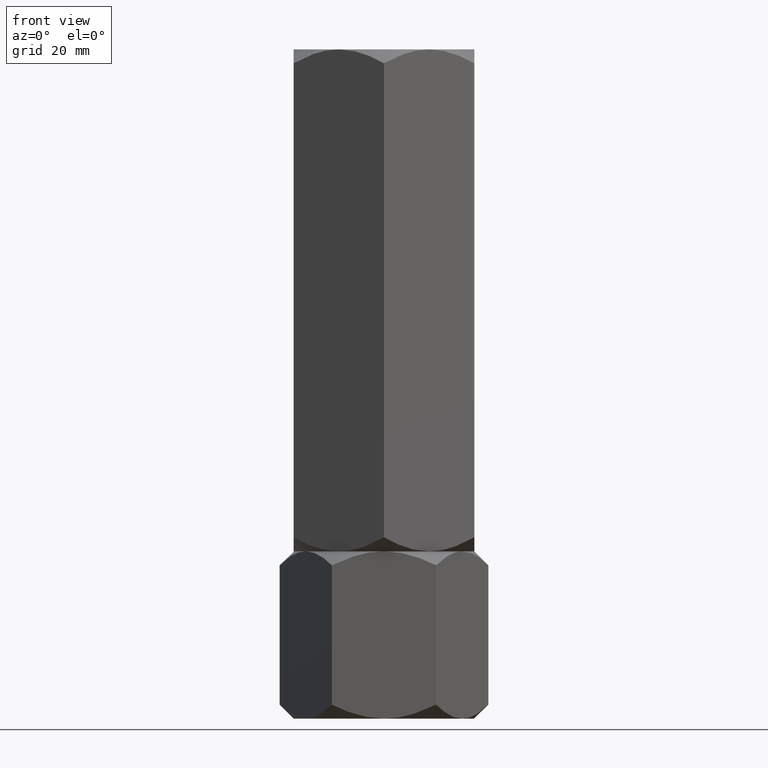
[diagram: clean part render]
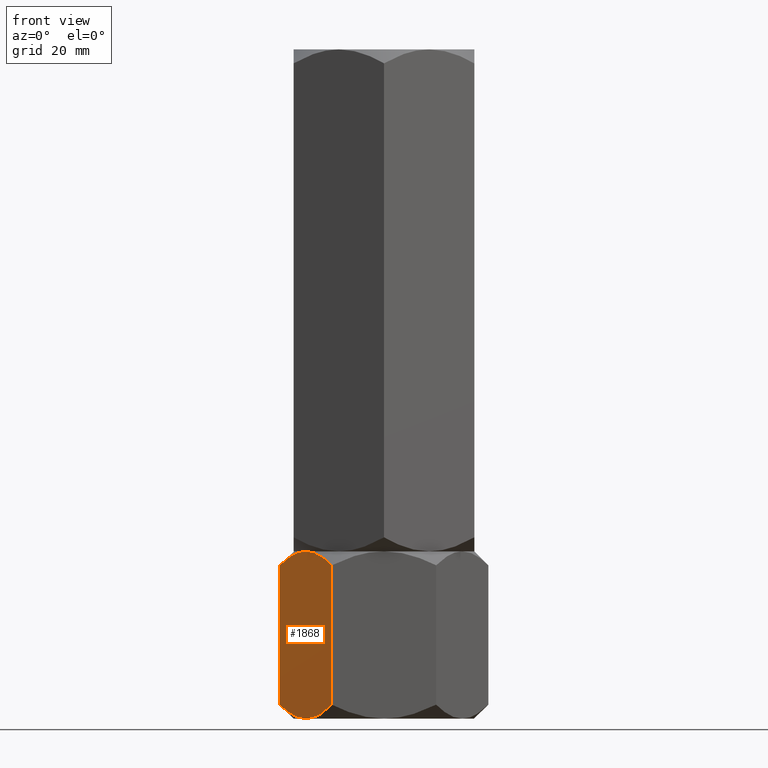
[diagram: same view with one face highlighted and labeled with its STEP entity id]
A machine part, front view. The second image highlights one B-rep face of the part: STEP entity #1868.
In plain terms, the highlighted planar face has unit normal (0.866, 0.5, -0).
Its self-contained STEP definition (entity closure, byte-faithful):
#12 = EDGE_CURVE ( 'NONE', #223, #1515, #426, .T. ) ;
#22 = CARTESIAN_POINT ( 'NONE',  ( -15.36090870263097408, -9.394125676616235765, 3.509257500474566305E-15 ) ) ;
#29 = EDGE_CURVE ( 'NONE', #794, #223, #205, .T. ) ;
#41 = CARTESIAN_POINT ( 'NONE',  ( -13.33524813246346952, -12.90267270303528235, 0.5370855558290108522 ) ) ;
#96 = CARTESIAN_POINT ( 'NONE',  ( -19.97072132548310108, -1.409696000463990906, 1.970721325483052233 ) ) ;
#116 = EDGE_CURVE ( 'NONE', #1865, #1197, #874, .T. ) ;
#143 = B_SPLINE_CURVE_WITH_KNOTS ( 'NONE', 3,
 ( #554, #1509, #1356, #1187, #397, #872, #1030, #681, #1633, #521 ),
 .UNSPECIFIED., .F., .F.,
 ( 4, 2, 2, 2, 4 ),
 ( 2.544307986817553974E-07, 0.005386537354063076002, 0.008079678815695275074, 0.009426249546511372007, 0.01077282027732746894 ),
 .UNSPECIFIED. ) ;
#147 = ORIENTED_EDGE ( 'NONE', *, *, #29, .F. ) ;
#177 = ORIENTED_EDGE ( 'NONE', *, *, #12, .F. ) ;
#181 = CARTESIAN_POINT ( 'NONE',  ( -12.04041001437222214, -15.14539811114618750, 1.277383077889871377 ) ) ;
#193 = CARTESIAN_POINT ( 'NONE',  ( -13.79618737047370125, -12.10430252359947900, 33.05693742621171083 ) ) ;
#205 = B_SPLINE_CURVE_WITH_KNOTS ( 'NONE', 3,
 ( #1457, #510, #193, #978, #1771, #361 ),
 .UNSPECIFIED., .F., .F.,
 ( 4, 2, 4 ),
 ( 0.01077282027732746894, 0.01612137750481873466, 0.02146993473231000038 ),
 .UNSPECIFIED. ) ;
#223 = VERTEX_POINT ( 'NONE', #951 ) ;
#259 = DIRECTION ( 'NONE',  ( 0.8660254037844385966, 0.5000000000000001110, -0.000000000000000000 ) ) ;
#268 = DIRECTION ( 'NONE',  ( -0.5000000000000001110, 0.8660254037844385966, 0.000000000000000000 ) ) ;
#273 = CARTESIAN_POINT ( 'NONE',  ( -10.39230484541326227, -18.00000000000000355, 33.33333333333330017 ) ) ;
#279 = CARTESIAN_POINT ( 'NONE',  ( -20.78460969082652809, -3.512511347539742526E-15, 33.33333333333330017 ) ) ;
#329 = EDGE_CURVE ( 'NONE', #1515, #1865, #923, .T. ) ;
#361 = CARTESIAN_POINT ( 'NONE',  ( -10.39230484541326405, -18.00000000000000355, 30.54872364250677563 ) ) ;
#367 = CARTESIAN_POINT ( 'NONE',  ( -14.67378923359658316, -10.58425150785354774, 0.08694689011815660840 ) ) ;
#397 = CARTESIAN_POINT ( 'NONE',  ( -17.40248616759157230, -5.858009779716803145, 32.99277023107802620 ) ) ;
#426 = LINE ( 'NONE', #273, #997 ) ;
#490 = CARTESIAN_POINT ( 'NONE',  ( -15.13208409062669624, -9.790461530629878339, 0.01733285647409177344 ) ) ;
#507 = CARTESIAN_POINT ( 'NONE',  ( -11.20713682960488100, -16.58866960374795951, 1.969777706634903591 ) ) ;
#510 = CARTESIAN_POINT ( 'NONE',  ( -14.68463803553234825, -10.56546083169953754, 33.33333333333330017 ) ) ;
#521 = CARTESIAN_POINT ( 'NONE',  ( -15.58845726811989607, -9.000000000000003553, 33.33333333333330017 ) ) ;
#553 = ORIENTED_EDGE ( 'NONE', *, *, #329, .F. ) ;
#554 = CARTESIAN_POINT ( 'NONE',  ( -20.78460969082652809, -3.746502714695151746E-15, 30.54872364250677919 ) ) ;
#593 = CARTESIAN_POINT ( 'NONE',  ( -20.78460969082652809, -3.746502714695151746E-15, 2.784609690826518325 ) ) ;
#610 = PLANE ( 'NONE',  #1898 ) ;
#627 = DIRECTION ( 'NONE',  ( -0.000000000000000000, -0.000000000000000000, -1.000000000000000000 ) ) ;
#681 = CARTESIAN_POINT ( 'NONE',  ( -16.04483044561309768, -8.209538469370130542, 33.31600047685921595 ) ) ;
#700 = EDGE_CURVE ( 'NONE', #1411, #794, #143, .T. ) ;
#731 = CARTESIAN_POINT ( 'NONE',  ( -20.78460969082652809, -3.746502714695151746E-15, 2.784609690826518325 ) ) ;
#743 = ORIENTED_EDGE ( 'NONE', *, *, #116, .F. ) ;
#794 = VERTEX_POINT ( 'NONE', #1120 ) ;
#835 = ORIENTED_EDGE ( 'NONE', *, *, #700, .F. ) ;
#872 = CARTESIAN_POINT ( 'NONE',  ( -16.72971695024925864, -7.023280245922047804, 33.19461073423471476 ) ) ;
#874 = B_SPLINE_CURVE_WITH_KNOTS ( 'NONE', 3,
 ( #1677, #889, #897, #1514, #96, #731 ),
 .UNSPECIFIED., .F., .F.,
 ( 4, 2, 4 ),
 ( 0.01077282027732746894, 0.01612137750481873466, 0.02146993473231000038 ),
 .UNSPECIFIED. ) ;
#889 = CARTESIAN_POINT ( 'NONE',  ( -16.49227650070744389, -7.434539168300462464, 3.445730029430492596E-15 ) ) ;
#897 = CARTESIAN_POINT ( 'NONE',  ( -17.38072716576608912, -5.895697476400523662, 0.2763959071215840724 ) ) ;
#923 = B_SPLINE_CURVE_WITH_KNOTS ( 'NONE', 3,
 ( #1764, #507, #181, #41, #1155, #1437, #367, #490, #22, #1143 ),
 .UNSPECIFIED., .F., .F.,
 ( 4, 2, 2, 2, 4 ),
 ( 2.544307986795061014E-07, 0.005386537354063075135, 0.008079678815695273339, 0.009426249546511372007, 0.01077282027732746894 ),
 .UNSPECIFIED. ) ;
#951 = CARTESIAN_POINT ( 'NONE',  ( -10.39230484541326405, -18.00000000000000355, 30.54872364250677563 ) ) ;
#978 = CARTESIAN_POINT ( 'NONE',  ( -12.04393988858690179, -15.13928418966203715, 32.06075863182904584 ) ) ;
#997 = VECTOR ( 'NONE', #627, 1000.000000000000000 ) ;
#1030 = CARTESIAN_POINT ( 'NONE',  ( -16.50312530264320543, -7.415748492146457593, 33.24638644321514391 ) ) ;
#1067 = LINE ( 'NONE', #279, #2001 ) ;
#1072 = CARTESIAN_POINT ( 'NONE',  ( -20.78460969082652809, -3.746502714695151746E-15, 30.54872364250677919 ) ) ;
#1117 = EDGE_LOOP ( 'NONE', ( #835, #1483, #743, #553, #177, #147 ) ) ;
#1120 = CARTESIAN_POINT ( 'NONE',  ( -15.58845726811989607, -9.000000000000003553, 33.33333333333330017 ) ) ;
#1143 = CARTESIAN_POINT ( 'NONE',  ( -15.58845726811989607, -9.000000000000003553, 0.000000000000000000 ) ) ;
#1155 = CARTESIAN_POINT ( 'NONE',  ( -13.77442836864821629, -12.14199022028320307, 0.3405631022552708664 ) ) ;
#1187 = CARTESIAN_POINT ( 'NONE',  ( -17.84166640377631552, -5.097327296964722976, 32.79624777750428422 ) ) ;
#1197 = VERTEX_POINT ( 'NONE', #593 ) ;
#1255 = CARTESIAN_POINT ( 'NONE',  ( -20.78460969082652809, -3.512511347539742526E-15, 33.33333333333330017 ) ) ;
#1356 = CARTESIAN_POINT ( 'NONE',  ( -19.13650452186756823, -2.854601888853814717, 32.05595025544343457 ) ) ;
#1381 = DIRECTION ( 'NONE',  ( -0.000000000000000000, -0.000000000000000000, -1.000000000000000000 ) ) ;
#1411 = VERTEX_POINT ( 'NONE', #1072 ) ;
#1437 = CARTESIAN_POINT ( 'NONE',  ( -14.44719758599053527, -10.97671975407795486, 0.1387225990985785085 ) ) ;
#1457 = CARTESIAN_POINT ( 'NONE',  ( -15.58845726811989607, -9.000000000000003553, 33.33333333333330017 ) ) ;
#1483 = ORIENTED_EDGE ( 'NONE', *, *, #1803, .T. ) ;
#1509 = CARTESIAN_POINT ( 'NONE',  ( -19.96977770663490759, -1.411330396252050701, 31.36355562669839614 ) ) ;
#1514 = CARTESIAN_POINT ( 'NONE',  ( -19.13297464765288325, -2.860715810337966403, 1.272574701504241235 ) ) ;
#1515 = VERTEX_POINT ( 'NONE', #1606 ) ;
#1606 = CARTESIAN_POINT ( 'NONE',  ( -10.39230484541326227, -18.00000000000000355, 2.784609690826521877 ) ) ;
#1633 = CARTESIAN_POINT ( 'NONE',  ( -15.81600583360881807, -8.605874323383771340, 33.33333333333330728 ) ) ;
#1677 = CARTESIAN_POINT ( 'NONE',  ( -15.58845726811989607, -9.000000000000003553, 0.000000000000000000 ) ) ;
#1764 = CARTESIAN_POINT ( 'NONE',  ( -10.39230484541326227, -18.00000000000000355, 2.784609690826521877 ) ) ;
#1771 = CARTESIAN_POINT ( 'NONE',  ( -11.20619321075668751, -16.59030399953601531, 31.36261200785025238 ) ) ;
#1803 = EDGE_CURVE ( 'NONE', #1411, #1197, #1067, .T. ) ;
#1847 = FACE_OUTER_BOUND ( 'NONE', #1117, .T. ) ;
#1865 = VERTEX_POINT ( 'NONE', #1878 ) ;
#1868 = ADVANCED_FACE ( 'NONE', ( #1847 ), #610, .F. ) ;
#1878 = CARTESIAN_POINT ( 'NONE',  ( -15.58845726811989607, -9.000000000000003553, 0.000000000000000000 ) ) ;
#1898 = AXIS2_PLACEMENT_3D ( 'NONE', #1255, #259, #268 ) ;
#2001 = VECTOR ( 'NONE', #1381, 1000.000000000000000 ) ;